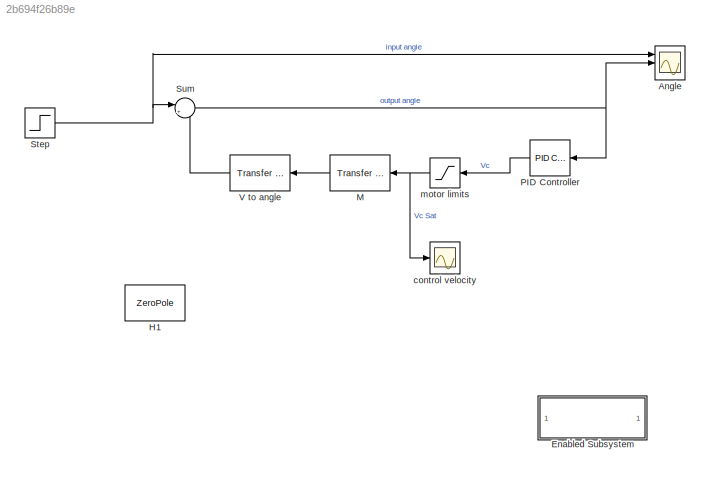
MODEL slx_2b694f26b89e
KIND model
CONFIG AbsTol = auto
CONFIG EnableMultiTasking = off
CONFIG FixedStep = auto
CONFIG MaxStep = auto
CONFIG MinStep = auto
CONFIG RelTol = 1e-3
CONFIG SampleTimeConstraint = Unconstrained
CONFIG SolverName = VariableStepAuto
CONFIG StartTime = 0.0
CONFIG StopTime = 20
BLOCK [Scope] Angle
  Floating = off
  NumInputPorts = 3
  Ports = [3]
  ScopeSpecificationString = Simulink.scopes.TimeScopeBlockCfg('CurrentConfiguration', extmgr.ConfigurationSet(extmgr.Configuration('Core','General UI',true),extmgr.Configuration('Core','Source UI',true),extmgr.Configuration('Sources','WiredSimulink',true),extmgr.Configuration('Visuals','Time Domain',true,'SerializedDisplays',{struct('MinYLimReal','-16996436972686990738021928665088.00000','MaxYLimReal','1888492996965220849088...<+1600ch>
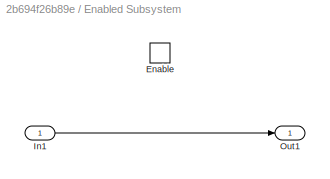
BLOCK [SubSystem] Enabled Subsystem
  Ports = [1, 1, 1]
  RequestExecContextInheritance = off
  TreatAsAtomicUnit = on
BLOCK [EnablePort] Enabled Subsystem/Enable
  Ports = []
BLOCK [Inport] Enabled Subsystem/In1
BLOCK [Outport] Enabled Subsystem/Out1
BLOCK [ZeroPole] H1
  Poles = [0 -1]
BLOCK [Reference] M  REF=simulink_extras/Additional
Linear/Transfer Fcn
(with initial states)
  Ports = [1, 1]
  SourceBlock = simulink_extras/Additional\nLinear/Transfer Fcn\n(with initial states)
  SourceProductBaseCode = SL
  SourceType = Transfer Function with Initial States
BLOCK [Reference] PID Controller  REF=pid_lib/PID Controller
  Ports = [1, 1]
  SourceBlock = pid_lib/PID Controller
  SourceProductBaseCode = SL
  SourceType = PID 1dof
BLOCK [Step] Step
  After = 0.1
  SampleTime = 0
  Time = 0
BLOCK [Sum] Sum
  Inputs = |++
  Ports = [2, 1]
BLOCK [Reference] V to angle  REF=simulink_extras/Additional
Linear/Transfer Fcn
(with initial states)
  Ports = [1, 1]
  SourceBlock = simulink_extras/Additional\nLinear/Transfer Fcn\n(with initial states)
  SourceProductBaseCode = SL
  SourceType = Transfer Function with Initial States
BLOCK [Scope] control velocity
  Floating = off
  NumInputPorts = 1
  Ports = [1]
  ScopeSpecificationString = Simulink.scopes.TimeScopeBlockCfg('CurrentConfiguration', extmgr.ConfigurationSet(extmgr.Configuration('Core','General UI',true),extmgr.Configuration('Core','Source UI',true),extmgr.Configuration('Sources','WiredSimulink',true,'DataLoggingVariableName','ScopeData1'),extmgr.Configuration('Visuals','Time Domain',true,'SerializedDisplays',{struct('MinYLimReal','-22069318867703248646697725991059456.00...<+1633ch>
BLOCK [Saturate] motor limits
  Commented = through
  LowerLimit = -300
  UpperLimit = 300
LINE Enabled Subsystem/In1:1 -> Enabled Subsystem/Out1:1
LINE M:1 -> V to angle:1
LINE PID Controller:1 -> motor limits:1
NET Step:1 -> Angle:1, Sum:1
NET Sum:1 -> Angle:2, PID Controller:1
LINE V to angle:1 -> Sum:2
NET motor limits:1 -> M:1, control velocity:1
note: NET lines group one-source signal fan-out (src -> all destinations, sorted); 1:1 wires keep LINE
